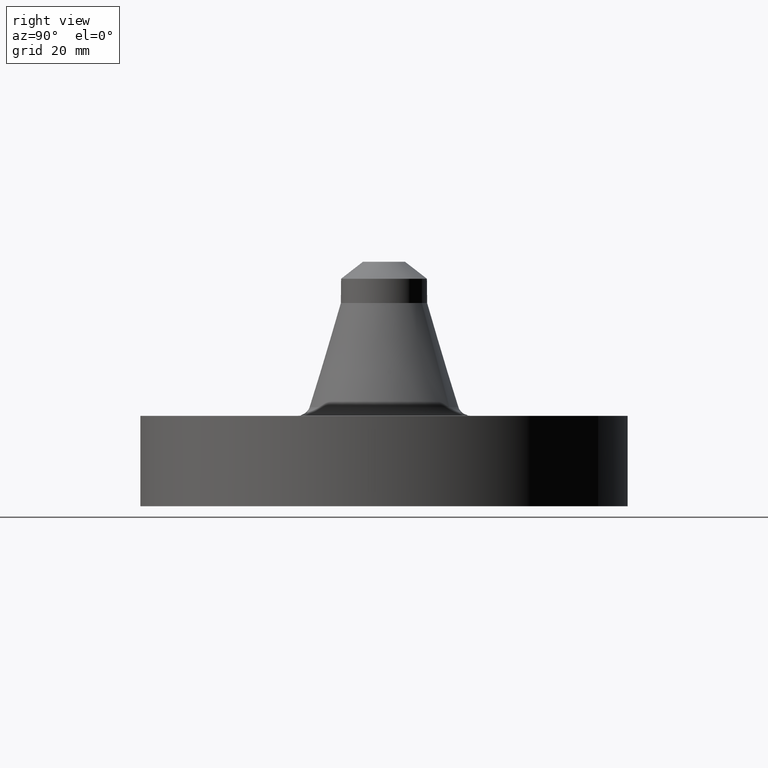
[diagram: clean part render]
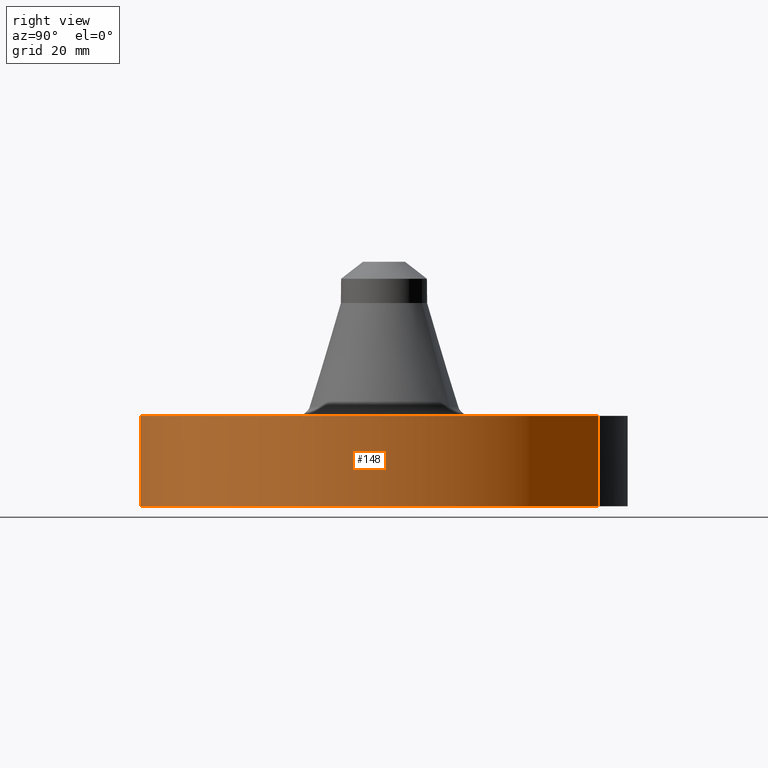
[diagram: same view with one face highlighted and labeled with its STEP entity id]
A machine part, right view. The second image highlights one B-rep face of the part: STEP entity #148.
In plain terms, the highlighted cylindrical surface (partial cylindrical patch) has radius 60.325 mm, axis along (0, 0, -1).
Its self-contained STEP definition (entity closure, byte-faithful):
#95=AXIS2_PLACEMENT_3D('Cylinder Axis2P3D',#92,#93,#94) ;
#134=AXIS2_PLACEMENT_3D('Circle Axis2P3D',#132,#133,$) ;
#139=AXIS2_PLACEMENT_3D('Circle Axis2P3D',#137,#138,$) ;
#92=CARTESIAN_POINT('Axis2P3D Location',(0.,0.,1.19)) ;
#101=CARTESIAN_POINT('Vertex',(-1.13863565419,-2.0842585845,1.39870617276E-016)) ;
#103=CARTESIAN_POINT('Vertex',(1.13863565419,2.0842585845,1.39870617276E-016)) ;
#106=CARTESIAN_POINT('Line Origine',(-1.13863565419,-2.0842585845,0.440000000002)) ;
#110=CARTESIAN_POINT('Vertex',(-1.13863565419,-2.0842585845,0.880000000004)) ;
#117=CARTESIAN_POINT('Vertex',(1.13863565419,2.0842585845,0.880000000004)) ;
#120=CARTESIAN_POINT('Line Origine',(1.13863565419,2.0842585845,0.440000000002)) ;
#132=CARTESIAN_POINT('Axis2P3D Location',(0.,0.,1.39870617276E-016)) ;
#137=CARTESIAN_POINT('Axis2P3D Location',(0.,0.,0.880000000004)) ;
#93=DIRECTION('Axis2P3D Direction',(0.,0.,-0.0393700787402)) ;
#94=DIRECTION('Axis2P3D XDirection',(0.0188750212049,0.0345504945626,0.)) ;
#107=DIRECTION('Vector Direction',(0.,0.,-0.0393700787402)) ;
#121=DIRECTION('Vector Direction',(0.,0.,-0.0393700787402)) ;
#133=DIRECTION('Axis2P3D Direction',(0.,0.,-0.0393700787402)) ;
#138=DIRECTION('Axis2P3D Direction',(0.,0.,-0.0393700787402)) ;
#108=VECTOR('Line Direction',#107,0.0393700787402) ;
#122=VECTOR('Line Direction',#121,0.0393700787402) ;
#143=ORIENTED_EDGE('',*,*,#136,.F.) ;
#144=ORIENTED_EDGE('',*,*,#124,.T.) ;
#145=ORIENTED_EDGE('',*,*,#141,.T.) ;
#146=ORIENTED_EDGE('',*,*,#112,.F.) ;
#148=ADVANCED_FACE('PartBody',(#147),#96,.T.) ;
#135=CIRCLE('generated circle',#134,2.37500000001) ;
#140=CIRCLE('generated circle',#139,2.37500000001) ;
#96=CYLINDRICAL_SURFACE('generated cylinder',#95,2.37500000001) ;
#112=EDGE_CURVE('',#102,#111,#109,.F.) ;
#124=EDGE_CURVE('',#104,#118,#123,.F.) ;
#136=EDGE_CURVE('',#104,#102,#135,.T.) ;
#141=EDGE_CURVE('',#118,#111,#140,.T.) ;
#142=EDGE_LOOP('',(#143,#144,#145,#146)) ;
#147=FACE_OUTER_BOUND('',#142,.T.) ;
#109=LINE('Line',#106,#108) ;
#123=LINE('Line',#120,#122) ;
#102=VERTEX_POINT('',#101) ;
#104=VERTEX_POINT('',#103) ;
#111=VERTEX_POINT('',#110) ;
#118=VERTEX_POINT('',#117) ;